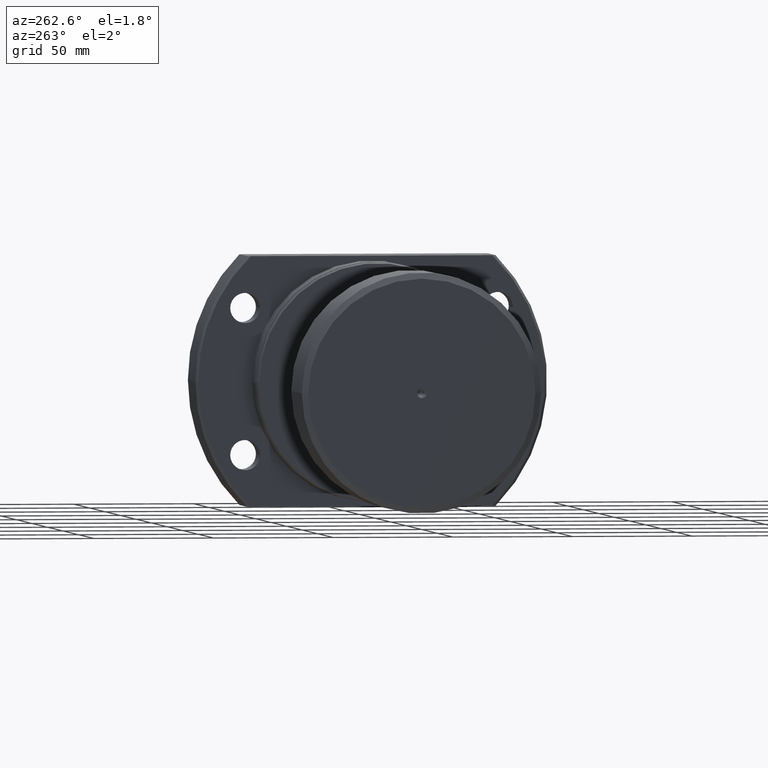
[diagram: clean part render]
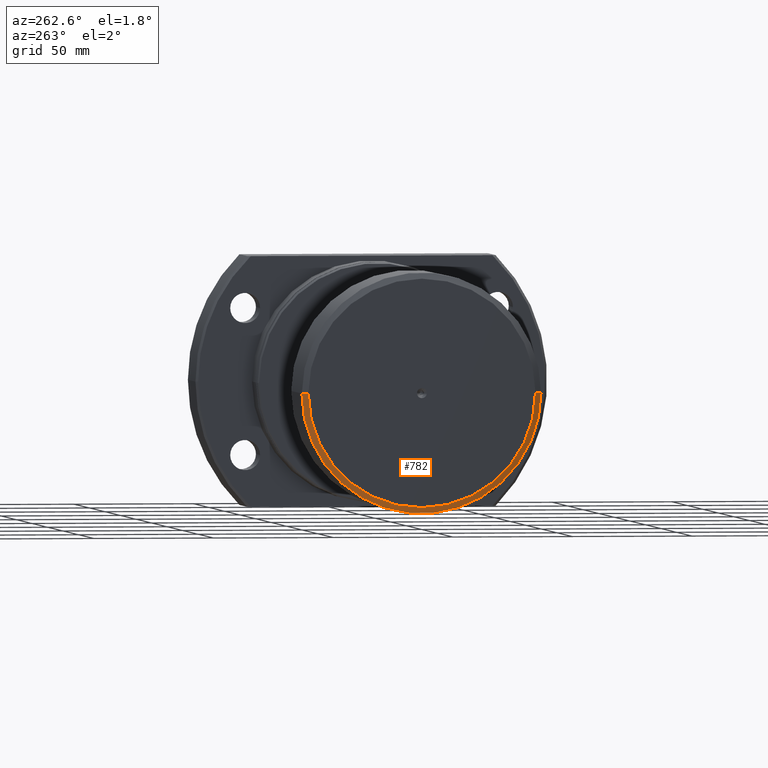
[diagram: same view with one face highlighted and labeled with its STEP entity id]
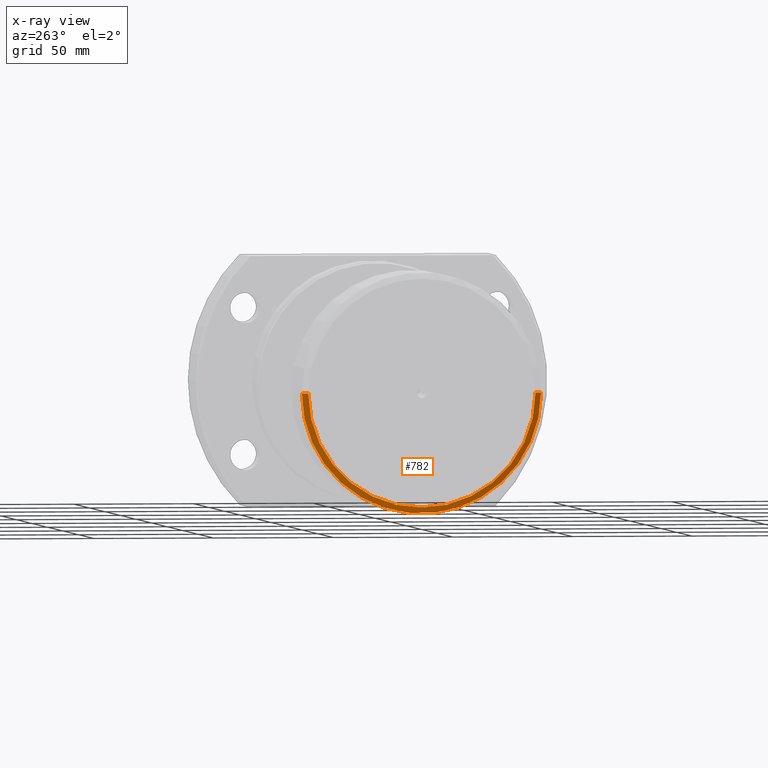
[diagram: x-ray of the same camera — body ghosted, the highlighted face saturated]
A machine part, auxiliary view. The second image highlights one B-rep face of the part: STEP entity #782.
The next image is the same camera in x-ray: the body ghosted, the highlighted face saturated — about 0% of this face is hidden behind the body in this view.
In plain terms, the highlighted conical surface has half-angle 59.036 deg.
Its self-contained STEP definition (entity closure, byte-faithful):
#62 = ORIENTED_EDGE ( 'NONE', *, *, #1735, .F. ) ;
#109 = CIRCLE ( 'NONE', #1113, 50.00000000000000000 ) ;
#159 = VERTEX_POINT ( 'NONE', #713 ) ;
#454 = CARTESIAN_POINT ( 'NONE',  ( 4.801007089984315887E-15, 47.50000000000000000, 0.000000000000000000 ) ) ;
#481 = CARTESIAN_POINT ( 'NONE',  ( 5.817072295949928215E-15, -47.50000000000000000, 5.817072295949928215E-15 ) ) ;
#499 = AXIS2_PLACEMENT_3D ( 'NONE', #2258, #3124, #1699 ) ;
#504 = DIRECTION ( 'NONE',  ( 0.5144957554275262357, -0.8574929257125444293, 1.050125966765366654E-16 ) ) ;
#524 = ORIENTED_EDGE ( 'NONE', *, *, #2125, .F. ) ;
#537 = CARTESIAN_POINT ( 'NONE',  ( 5.817072295949928215E-15, -47.50000000000000000, 5.970153145843347150E-15 ) ) ;
#653 = DIRECTION ( 'NONE',  ( 0.5144957554275262357, 0.8574929257125444293, 0.000000000000000000 ) ) ;
#713 = CARTESIAN_POINT ( 'NONE',  ( 1.500000000000006217, -50.00000000000000000, 6.123233995736766085E-15 ) ) ;
#782 = ADVANCED_FACE ( 'NONE', ( #3118 ), #2098, .T. ) ;
#810 = VERTEX_POINT ( 'NONE', #1695 ) ;
#1001 = LINE ( 'NONE', #3540, #1691 ) ;
#1023 = AXIS2_PLACEMENT_3D ( 'NONE', #2497, #1991, #2293 ) ;
#1113 = AXIS2_PLACEMENT_3D ( 'NONE', #2971, #1827, #3274 ) ;
#1514 = VERTEX_POINT ( 'NONE', #454 ) ;
#1589 = ORIENTED_EDGE ( 'NONE', *, *, #2427, .T. ) ;
#1691 = VECTOR ( 'NONE', #653, 999.9999999999998863 ) ;
#1695 = CARTESIAN_POINT ( 'NONE',  ( 1.500000000000005551, 50.00000000000000000, 0.000000000000000000 ) ) ;
#1699 = DIRECTION ( 'NONE',  ( 1.069542322069065647E-17, -1.000000000000000000, 0.000000000000000000 ) ) ;
#1735 = EDGE_CURVE ( 'NONE', #1514, #2204, #2044, .T. ) ;
#1827 = DIRECTION ( 'NONE',  ( -1.000000000000000000, -1.069542322069065801E-17, -0.000000000000000000 ) ) ;
#1991 = DIRECTION ( 'NONE',  ( 1.000000000000000000, 1.069542322069065801E-17, 0.000000000000000000 ) ) ;
#2044 = CIRCLE ( 'NONE', #499, 47.50000000000000000 ) ;
#2098 = CONICAL_SURFACE ( 'NONE', #1023, 47.50000000000000000, 1.030376826524312728 ) ;
#2125 = EDGE_CURVE ( 'NONE', #2204, #159, #3577, .T. ) ;
#2151 = EDGE_LOOP ( 'NONE', ( #524, #62, #1589, #3459 ) ) ;
#2204 = VERTEX_POINT ( 'NONE', #537 ) ;
#2258 = CARTESIAN_POINT ( 'NONE',  ( 5.309039692967122051E-15, 5.678242641172895614E-32, 0.000000000000000000 ) ) ;
#2293 = DIRECTION ( 'NONE',  ( -1.069542322069065647E-17, 1.000000000000000000, 0.000000000000000000 ) ) ;
#2427 = EDGE_CURVE ( 'NONE', #1514, #810, #1001, .T. ) ;
#2497 = CARTESIAN_POINT ( 'NONE',  ( 5.309039692967122051E-15, 5.678242641172895614E-32, 0.000000000000000000 ) ) ;
#2971 = CARTESIAN_POINT ( 'NONE',  ( 1.500000000000005995, 1.604313483103604941E-17, 0.000000000000000000 ) ) ;
#3118 = FACE_OUTER_BOUND ( 'NONE', #2151, .T. ) ;
#3124 = DIRECTION ( 'NONE',  ( -1.000000000000000000, -1.069542322069065801E-17, -0.000000000000000000 ) ) ;
#3274 = DIRECTION ( 'NONE',  ( 8.673617379884035472E-18, -1.000000000000000000, 0.000000000000000000 ) ) ;
#3420 = VECTOR ( 'NONE', #504, 999.9999999999998863 ) ;
#3459 = ORIENTED_EDGE ( 'NONE', *, *, #3593, .T. ) ;
#3540 = CARTESIAN_POINT ( 'NONE',  ( 4.801007089984315887E-15, 47.50000000000000000, 0.000000000000000000 ) ) ;
#3577 = LINE ( 'NONE', #481, #3420 ) ;
#3593 = EDGE_CURVE ( 'NONE', #810, #159, #109, .T. ) ;